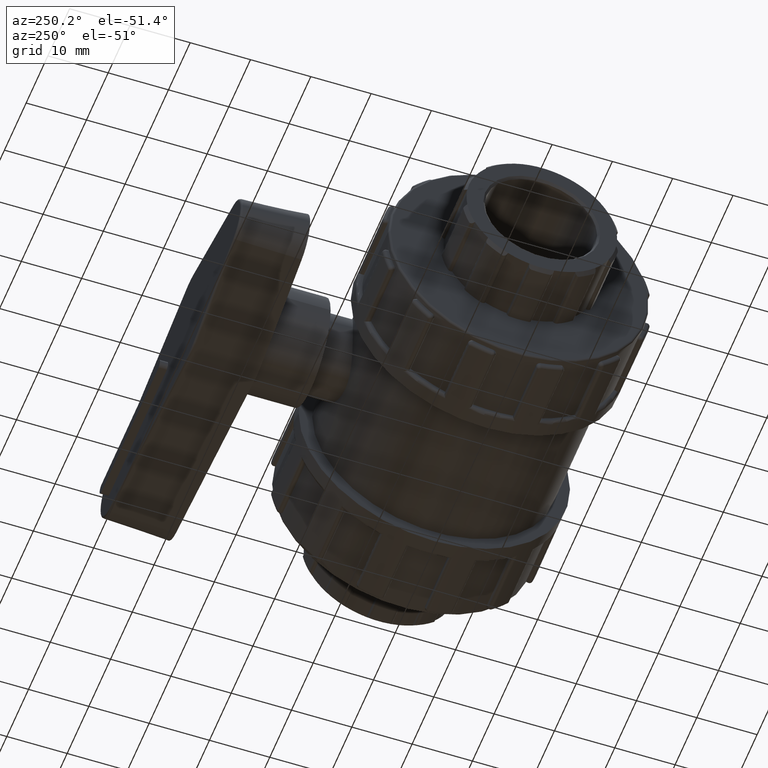
[diagram: clean part render]
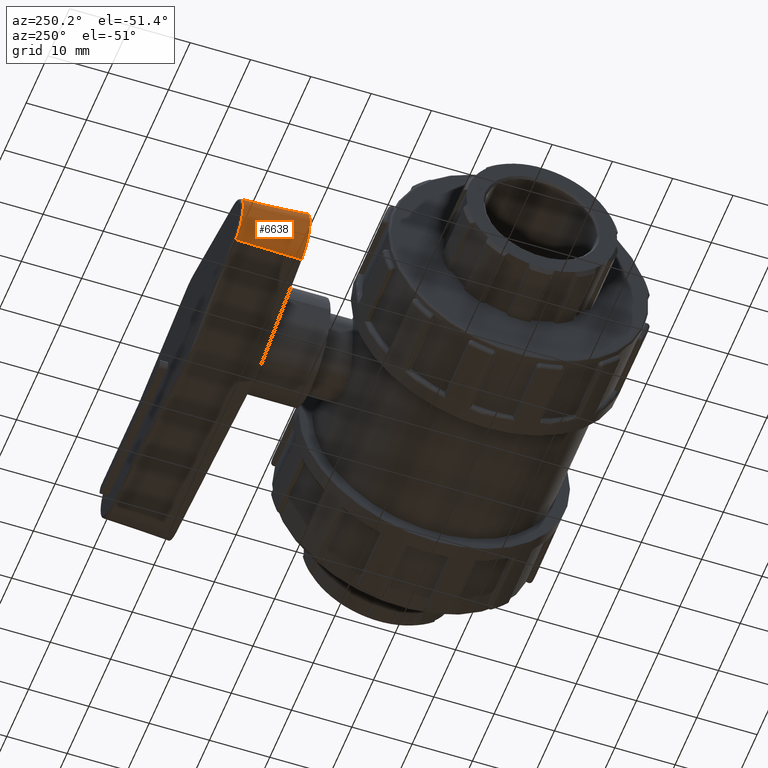
[diagram: same view with one face highlighted and labeled with its STEP entity id]
A machine part, auxiliary view. The second image highlights one B-rep face of the part: STEP entity #6638.
In plain terms, the highlighted conical surface has half-angle 3 deg.
Its self-contained STEP definition (entity closure, byte-faithful):
#342=CONICAL_SURFACE('',#7099,4.5,3.);
#441=FACE_OUTER_BOUND('',#877,.T.);
#877=EDGE_LOOP('',(#4418,#4419,#4420,#4421));
#1339=LINE('',#10414,#1735);
#1341=LINE('',#10417,#1737);
#1735=VECTOR('',#8123,10.9118357156273);
#1737=VECTOR('',#8127,10.9118357156273);
#2118=CIRCLE('',#7071,4.51850616039095);
#2129=CIRCLE('',#7095,5.08958751693422);
#2635=VERTEX_POINT('',#10339);
#2637=VERTEX_POINT('',#10345);
#2655=VERTEX_POINT('',#10406);
#2656=VERTEX_POINT('',#10408);
#3287=EDGE_CURVE('',#2635,#2637,#2118,.T.);
#3316=EDGE_CURVE('',#2656,#2655,#2129,.T.);
#3319=EDGE_CURVE('',#2637,#2655,#1339,.T.);
#3321=EDGE_CURVE('',#2635,#2656,#1341,.T.);
#4418=ORIENTED_EDGE('',*,*,#3287,.F.);
#4419=ORIENTED_EDGE('',*,*,#3321,.T.);
#4420=ORIENTED_EDGE('',*,*,#3316,.T.);
#4421=ORIENTED_EDGE('',*,*,#3319,.F.);
#6638=ADVANCED_FACE('',(#441),#342,.T.);
#7071=AXIS2_PLACEMENT_3D('',#10349,#8050,#8051);
#7095=AXIS2_PLACEMENT_3D('',#10409,#8116,#8117);
#7099=AXIS2_PLACEMENT_3D('',#10418,#8128,#8129);
#8050=DIRECTION('center_axis',(0.,1.,0.));
#8051=DIRECTION('ref_axis',(-1.,0.,-1.22464679914735E-16));
#8116=DIRECTION('center_axis',(-3.06161699786838E-16,1.,0.));
#8117=DIRECTION('ref_axis',(1.,3.06161699786838E-16,0.));
#8123=DIRECTION('',(-0.0120775283637559,-0.998629534754574,0.050923330846342));
#8127=DIRECTION('',(-0.0120775283637559,-0.998629534754574,-0.0509233308463419));
#8128=DIRECTION('center_axis',(3.94745964311167E-16,-1.,0.));
#8129=DIRECTION('ref_axis',(1.,3.06161699786838E-16,0.));
#10339=CARTESIAN_POINT('',(-20.5427321908595,44.6468814240152,-4.39654495025769));
#10345=CARTESIAN_POINT('',(-20.5427321908595,44.6468814240152,4.3965449502577));
#10349=CARTESIAN_POINT('Origin',(-19.5,44.6468814240152,1.84889274661175E-31));
#10406=CARTESIAN_POINT('',(-20.6745201962156,33.75,4.95221197054552));
#10408=CARTESIAN_POINT('',(-20.6745201962156,33.75,-4.95221197054551));
#10409=CARTESIAN_POINT('Origin',(-19.5,33.75,0.));
#10414=CARTESIAN_POINT('',(-20.5384615384616,45.,4.37853829869468));
#10417=CARTESIAN_POINT('',(-20.5384615384616,45.,-4.37853829869467));
#10418=CARTESIAN_POINT('Origin',(-19.5,45.,0.));